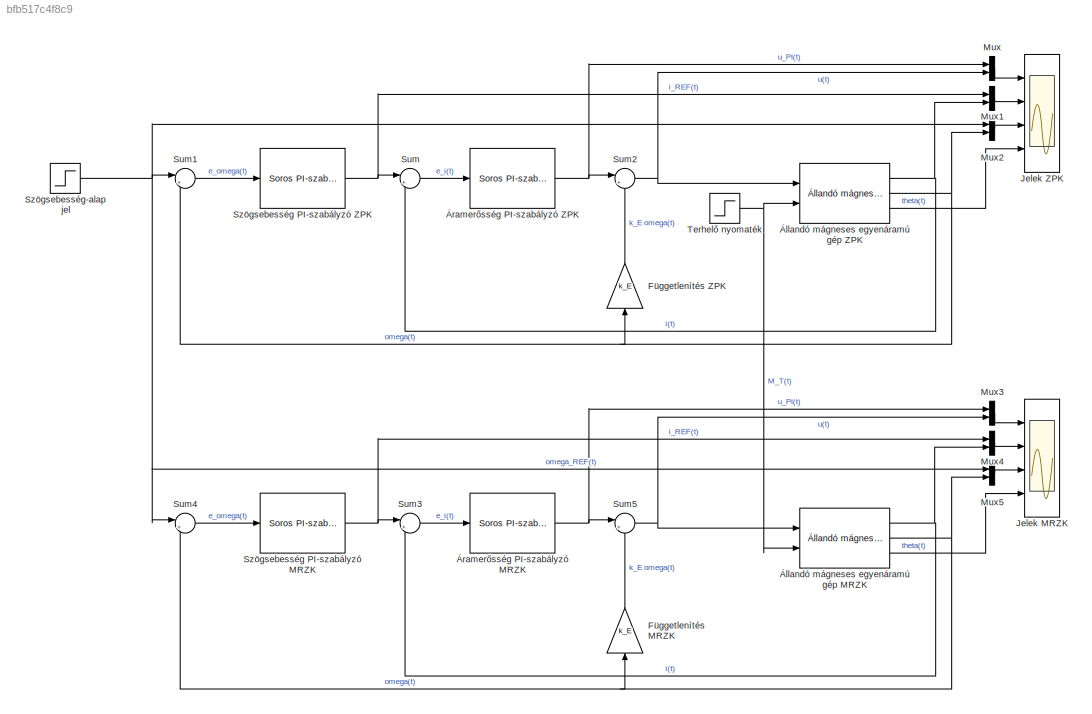
MODEL slx_bfb517c4f8c9
KIND model
CONFIG InitFcn = % Villamos áramköri rész\nR = 1.76;\nL = 658e-6;\n\n% Mágneskör\nk_T = 68.3e-3;\nk_E = 68.3e-3;\n\n% Forgó részrendszer\nJ = 99.5e-7;\nB = 5.7301e-6;\n\n% A belső áramszabályzókör hangolása\nK_RL = 1/R;\ntau_RL = L/R;\n\n% ZPK\nT_I_RL_ZPK = tau_RL;\nK_PI_RL_ZPK = 1/K_RL * 10;\n\n% MRZK\nxi_CL_RL = 1;\ntau_CL_RL = tau_RL/10;\n\nK_PI_RL_MRZK = (2*xi_CL_RL*tau_RL - tau_CL_RL)/(K_RL*tau_CL_RL);\nT_I_RL_MRZK = (2*xi_CL_RL*tau_...<+343ch>
BLOCK [Gain] Függetlenítés MRZK
  Gain = k_E
  OutDataTypeStr = Inherit: Inherit via internal rule
  ParamDataTypeStr = Inherit: Inherit via internal rule
  SaturateOnIntegerOverflow = off
BLOCK [Gain] Függetlenítés ZPK
  Gain = k_E
  OutDataTypeStr = Inherit: Inherit via internal rule
  ParamDataTypeStr = Inherit: Inherit via internal rule
  SaturateOnIntegerOverflow = off
BLOCK [Scope] Jelek MRZK
  DataFormat = StructureWithTime
  Floating = off
  LegendLocations = 0.85324     0.92225     0.10961    0.038257\n0.84462      0.6842     0.11823    0.038257\n0.80768     0.44722     0.15517    0.038257\n0.85078     0.22689     0.11207    0.021608
  LimitDataPoints = off
  NumInputPorts = 4
  Ports = [4]
  SampleTime = 0
  SaveName = ScopeData1
  ShowLegends = on
  TimeRange = 0.5
  YMax = 150~8~300~40
  YMin = -150~-6~-400~0
BLOCK [Scope] Jelek ZPK
  DataFormat = StructureWithTime
  Floating = off
  LegendLocations = 0.85324     0.92225     0.10961    0.038257\n0.84462      0.6842     0.11823    0.038257\n0.80768     0.44722     0.15517    0.038257\n0.85078     0.22689     0.11207    0.021608
  LimitDataPoints = off
  NumInputPorts = 4
  Ports = [4]
  SampleTime = 0
  ShowLegends = on
  TimeRange = 0.5
  YMax = 150~8~300~40
  YMin = -150~-6~-400~0
  ZoomMode = yonly
BLOCK [Mux] Mux
  DisplayOption = bar
  Inputs = 2
  Ports = [2, 1]
BLOCK [Mux] Mux1
  DisplayOption = bar
  Inputs = 2
  Ports = [2, 1]
BLOCK [Mux] Mux2
  DisplayOption = bar
  Inputs = 2
  Ports = [2, 1]
BLOCK [Mux] Mux3
  DisplayOption = bar
  Inputs = 2
  Ports = [2, 1]
BLOCK [Mux] Mux4
  DisplayOption = bar
  Inputs = 2
  Ports = [2, 1]
BLOCK [Mux] Mux5
  DisplayOption = bar
  Inputs = 2
  Ports = [2, 1]
BLOCK [Sum] Sum
  IconShape = round
  InputSameDT = off
  Inputs = |+-
  OutDataTypeStr = Inherit: Inherit via internal rule
  Ports = [2, 1]
  SaturateOnIntegerOverflow = off
BLOCK [Sum] Sum1
  IconShape = round
  InputSameDT = off
  Inputs = |+-
  OutDataTypeStr = Inherit: Inherit via internal rule
  Ports = [2, 1]
  SaturateOnIntegerOverflow = off
BLOCK [Sum] Sum2
  IconShape = round
  InputSameDT = off
  Inputs = |++
  OutDataTypeStr = Inherit: Inherit via internal rule
  Ports = [2, 1]
  SaturateOnIntegerOverflow = off
BLOCK [Sum] Sum3
  IconShape = round
  InputSameDT = off
  Inputs = |+-
  OutDataTypeStr = Inherit: Inherit via internal rule
  Ports = [2, 1]
  SaturateOnIntegerOverflow = off
BLOCK [Sum] Sum4
  IconShape = round
  InputSameDT = off
  Inputs = |+-
  OutDataTypeStr = Inherit: Inherit via internal rule
  Ports = [2, 1]
  SaturateOnIntegerOverflow = off
BLOCK [Sum] Sum5
  IconShape = round
  InputSameDT = off
  Inputs = |++
  OutDataTypeStr = Inherit: Inherit via internal rule
  Ports = [2, 1]
  SaturateOnIntegerOverflow = off
BLOCK [Reference] Szögsebesség PI-szabályzó MRZK  REF=RI_MK/Soros PI-szabályzó
  K_PI = K_PI_JB_MRZK
  Ports = [1, 1]
  SourceBlock = RI_MK/Soros PI-szabályzó
  SourceType = Soros PI-szabályzó
  T_I = T_I_JB_MRZK
BLOCK [Reference] Szögsebesség PI-szabályzó ZPK  REF=RI_MK/Soros PI-szabályzó
  K_PI = K_PI_JB_ZPK
  Ports = [1, 1]
  SourceBlock = RI_MK/Soros PI-szabályzó
  SourceType = Soros PI-szabályzó
  T_I = T_I_JB_ZPK
BLOCK [Step] Szögsebesség-alapjel
  After = 300
  SampleTime = 0
  Time = 50e-3
BLOCK [Step] Terhelő nyomaték
  After = 100e-3
  SampleTime = 0
  Time = 250e-3
BLOCK [Reference] Állandó mágneses egyenáramú gép MRZK  REF=RI_MK/Állandó mágneses egyenáramú gép
  B = B
  J = J
  L = L
  Ports = [2, 3]
  R = R
  SourceBlock = RI_MK/Állandó mágneses egyenáramú gép
  SourceType = Állandó mágneses egyenáramú gép
  i_0 = 0
  k_E = k_E
  k_T = k_T
  omega_0 = 0
  theta_0 = 0
BLOCK [Reference] Állandó mágneses egyenáramú gép ZPK  REF=RI_MK/Állandó mágneses egyenáramú gép
  B = B
  J = J
  L = L
  Ports = [2, 3]
  R = R
  SourceBlock = RI_MK/Állandó mágneses egyenáramú gép
  SourceType = Állandó mágneses egyenáramú gép
  i_0 = 0
  k_E = k_E
  k_T = k_T
  omega_0 = 0
  theta_0 = 0
BLOCK [Reference] Áramerősség PI-szabályzó MRZK  REF=RI_MK/Soros PI-szabályzó
  K_PI = K_PI_RL_MRZK
  Ports = [1, 1]
  SourceBlock = RI_MK/Soros PI-szabályzó
  SourceType = Soros PI-szabályzó
  T_I = T_I_RL_MRZK
BLOCK [Reference] Áramerősség PI-szabályzó ZPK  REF=RI_MK/Soros PI-szabályzó
  K_PI = K_PI_RL_ZPK
  Ports = [1, 1]
  SourceBlock = RI_MK/Soros PI-szabályzó
  SourceType = Soros PI-szabályzó
  T_I = T_I_RL_ZPK
LINE Függetlenítés MRZK:1 -> Sum5:2
LINE Függetlenítés ZPK:1 -> Sum2:2
LINE Mux1:1 -> Jelek ZPK:2
LINE Mux2:1 -> Jelek ZPK:3
LINE Mux3:1 -> Jelek MRZK:1
LINE Mux4:1 -> Jelek MRZK:2
LINE Mux5:1 -> Jelek MRZK:3
LINE Mux:1 -> Jelek ZPK:1
LINE Sum1:1 -> Szögsebesség PI-szabályzó ZPK:1
NET Sum2:1 -> Mux:2, Állandó mágneses egyenáramú gép ZPK:1
LINE Sum3:1 -> Áramerősség PI-szabályzó MRZK:1
LINE Sum4:1 -> Szögsebesség PI-szabályzó MRZK:1
NET Sum5:1 -> Mux3:2, Állandó mágneses egyenáramú gép MRZK:1
LINE Sum:1 -> Áramerősség PI-szabályzó ZPK:1
NET Szögsebesség PI-szabályzó MRZK:1 -> Mux4:1, Sum3:1
NET Szögsebesség PI-szabályzó ZPK:1 -> Mux1:1, Sum:1
NET Szögsebesség-alapjel:1 -> Mux2:1, Mux5:1, Sum1:1, Sum4:1
NET Terhelő nyomaték:1 -> Állandó mágneses egyenáramú gép MRZK:2, Állandó mágneses egyenáramú gép ZPK:2
NET Állandó mágneses egyenáramú gép MRZK:1 -> Mux4:2, Sum3:2
NET Állandó mágneses egyenáramú gép MRZK:2 -> Függetlenítés MRZK:1, Mux5:2, Sum4:2
LINE Állandó mágneses egyenáramú gép MRZK:3 -> Jelek MRZK:4
NET Állandó mágneses egyenáramú gép ZPK:1 -> Mux1:2, Sum:2
NET Állandó mágneses egyenáramú gép ZPK:2 -> Függetlenítés ZPK:1, Mux2:2, Sum1:2
LINE Állandó mágneses egyenáramú gép ZPK:3 -> Jelek ZPK:4
NET Áramerősség PI-szabályzó MRZK:1 -> Mux3:1, Sum5:1
NET Áramerősség PI-szabályzó ZPK:1 -> Mux:1, Sum2:1
note: NET lines group one-source signal fan-out (src -> all destinations, sorted); 1:1 wires keep LINE
